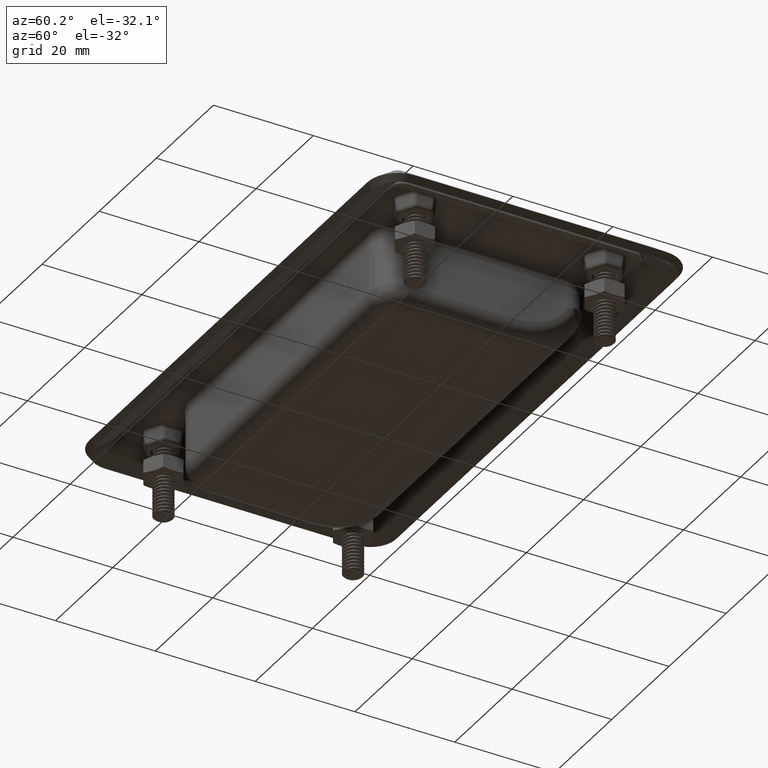
[diagram: clean part render]
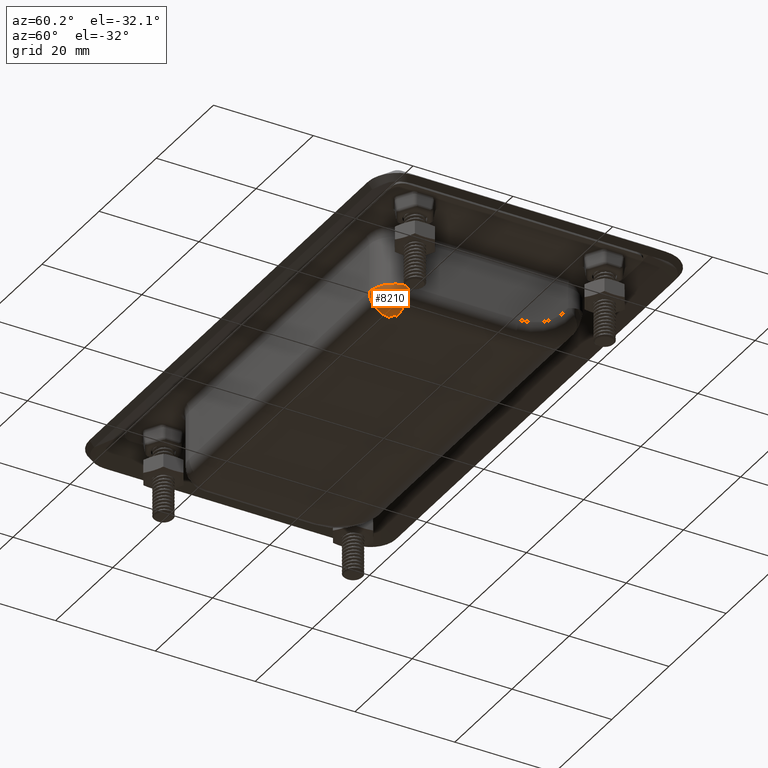
[diagram: same view with one face highlighted and labeled with its STEP entity id]
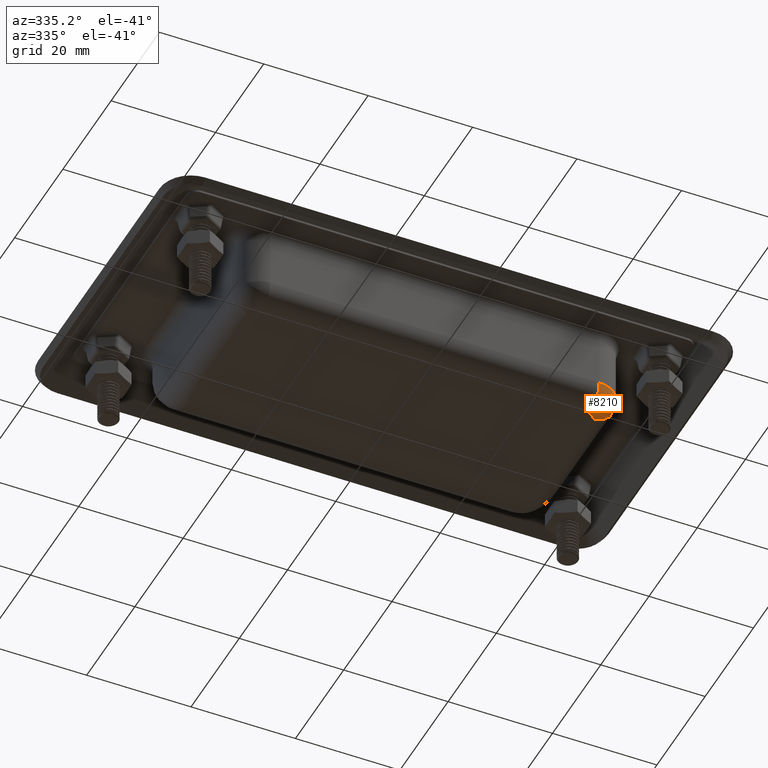
[diagram: same view with one face highlighted and labeled with its STEP entity id]
A machine part, auxiliary view. The second image highlights one B-rep face of the part: STEP entity #8210.
A second angle (auxiliary view) of the same face is appended — the face is thin or edge-on in the first view.
In plain terms, the highlighted face is a freeform B-spline surface patch.
Its self-contained STEP definition (entity closure, byte-faithful):
#117=(
BOUNDED_SURFACE()
B_SPLINE_SURFACE(2,2,((#14461,#14462,#14463),(#14464,#14465,#14466),(#14467,
#14468,#14469)),.UNSPECIFIED.,.F.,.F.,.F.)
B_SPLINE_SURFACE_WITH_KNOTS((3,3),(3,3),(-1.57079632679491,-2.15109212631908E-15),
(-1.57079632679486,-4.34815040447012E-14),.UNSPECIFIED.)
GEOMETRIC_REPRESENTATION_ITEM()
RATIONAL_B_SPLINE_SURFACE(((1.,0.707106781186576,1.),(0.707106781186545,
0.500000000000018,0.707106781186545),(1.,0.707106781186576,1.)))
REPRESENTATION_ITEM('')
SURFACE()
);
#356=CIRCLE('',#8832,5.);
#363=CIRCLE('',#8843,4.);
#364=CIRCLE('',#8844,4.);
#365=CIRCLE('',#8845,0.999999999999999);
#941=FACE_OUTER_BOUND('',#1461,.T.);
#1461=EDGE_LOOP('',(#6217,#6218,#6219,#6220));
#3644=VERTEX_POINT('',#14179);
#3647=VERTEX_POINT('',#14187);
#3707=VERTEX_POINT('',#14458);
#3708=VERTEX_POINT('',#14470);
#4554=EDGE_CURVE('',#3644,#3647,#356,.T.);
#4617=EDGE_CURVE('',#3707,#3647,#363,.T.);
#4618=EDGE_CURVE('',#3708,#3644,#364,.T.);
#4619=EDGE_CURVE('',#3707,#3708,#365,.T.);
#6217=ORIENTED_EDGE('',*,*,#4618,.T.);
#6218=ORIENTED_EDGE('',*,*,#4554,.T.);
#6219=ORIENTED_EDGE('',*,*,#4617,.F.);
#6220=ORIENTED_EDGE('',*,*,#4619,.T.);
#8210=ADVANCED_FACE('',(#941),#117,.F.);
#8832=AXIS2_PLACEMENT_3D('',#14189,#9969,#9970);
#8843=AXIS2_PLACEMENT_3D('',#14460,#10023,#10024);
#8844=AXIS2_PLACEMENT_3D('',#14471,#10025,#10026);
#8845=AXIS2_PLACEMENT_3D('',#14472,#10027,#10028);
#9969=DIRECTION('center_axis',(0.,3.7470027081099E-16,-1.));
#9970=DIRECTION('ref_axis',(0.707106781186548,-0.707106781186547,-2.64953102402887E-16));
#10023=DIRECTION('center_axis',(-1.,0.,0.));
#10024=DIRECTION('ref_axis',(0.,3.7470027081099E-16,-1.));
#10025=DIRECTION('center_axis',(0.,-1.,-3.7470027081099E-16));
#10026=DIRECTION('ref_axis',(0.,3.7470027081099E-16,-1.));
#10027=DIRECTION('center_axis',(0.,-3.7470027081099E-16,1.));
#10028=DIRECTION('ref_axis',(0.707106781186548,-0.707106781186547,-2.64953102402887E-16));
#14179=CARTESIAN_POINT('',(36.5,-16.,-57.2));
#14187=CARTESIAN_POINT('',(31.5,-21.,-57.2));
#14189=CARTESIAN_POINT('Origin',(31.5,-16.,-57.2));
#14458=CARTESIAN_POINT('',(31.5,-17.,-61.2));
#14460=CARTESIAN_POINT('Origin',(31.5,-17.,-57.2));
#14461=CARTESIAN_POINT('Ctrl Pts',(31.4999999999998,-17.,-61.2));
#14462=CARTESIAN_POINT('Ctrl Pts',(32.5,-16.9999999999999,-61.2));
#14463=CARTESIAN_POINT('Ctrl Pts',(32.5,-15.9999999999998,-61.2));
#14464=CARTESIAN_POINT('Ctrl Pts',(31.4999999999998,-21.,-61.2000000000001));
#14465=CARTESIAN_POINT('Ctrl Pts',(36.4999999999999,-20.9999999999998,-61.2000000000001));
#14466=CARTESIAN_POINT('Ctrl Pts',(36.5000000000001,-15.9999999999998,-61.2000000000001));
#14467=CARTESIAN_POINT('Ctrl Pts',(31.4999999999998,-21.0000000000001,-57.2));
#14468=CARTESIAN_POINT('Ctrl Pts',(36.4999999999999,-20.9999999999998,-57.2));
#14469=CARTESIAN_POINT('Ctrl Pts',(36.5000000000001,-15.9999999999998,-57.2));
#14470=CARTESIAN_POINT('',(32.5,-16.,-61.2));
#14471=CARTESIAN_POINT('Origin',(32.5,-16.,-57.2));
#14472=CARTESIAN_POINT('Origin',(31.5,-16.,-61.2));